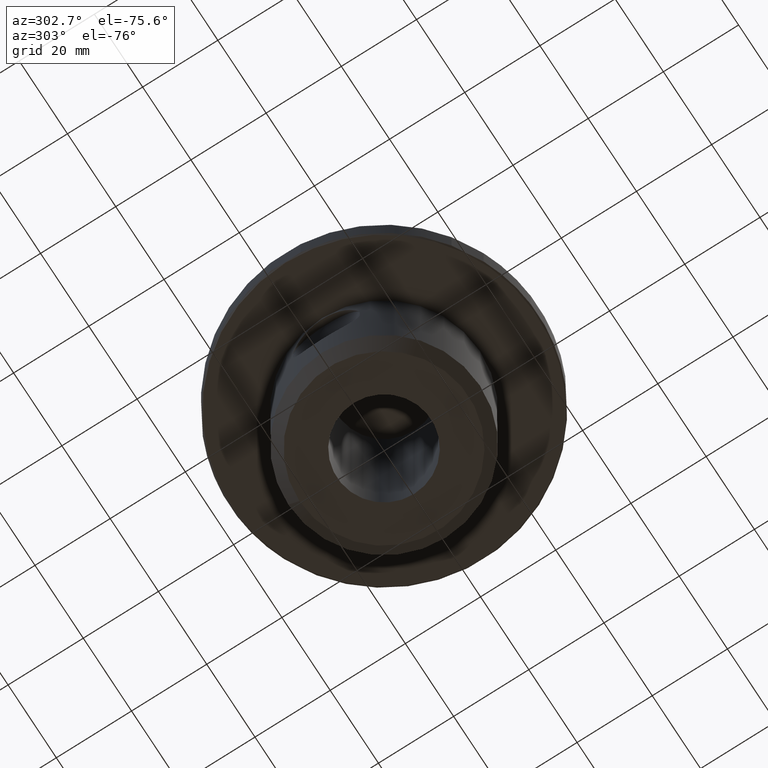
[diagram: clean part render]
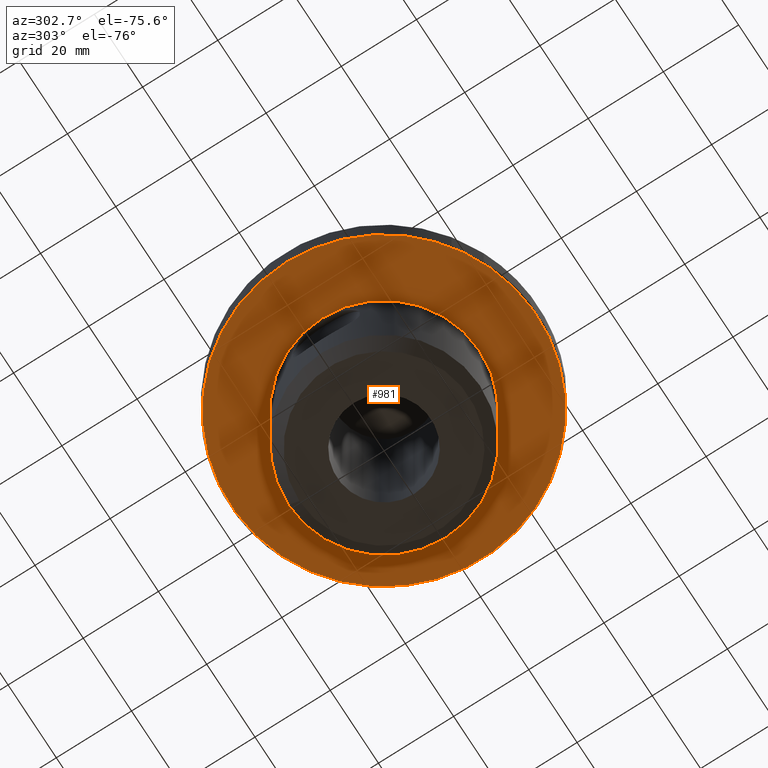
[diagram: same view with one face highlighted and labeled with its STEP entity id]
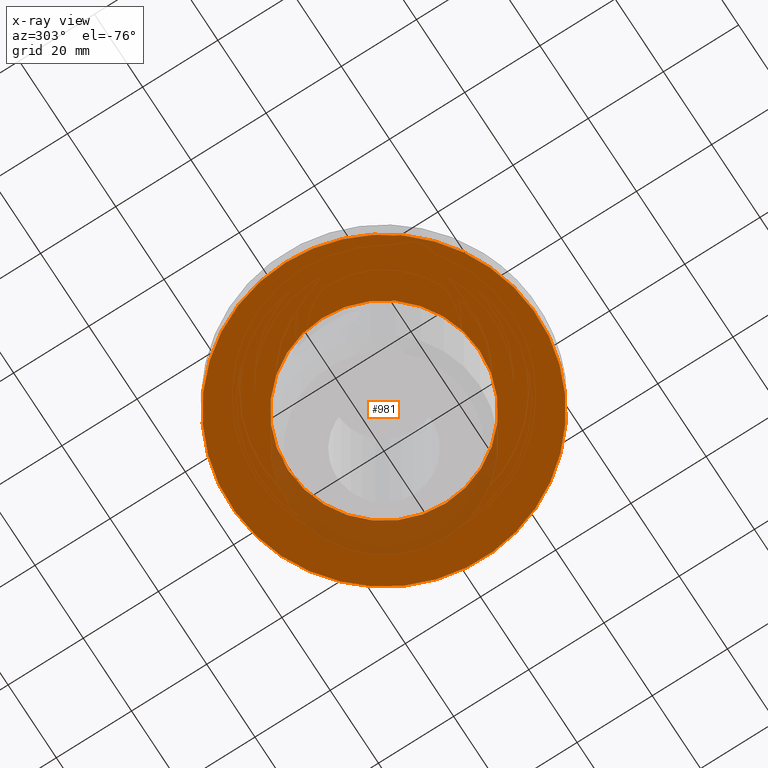
[diagram: x-ray of the same camera — body ghosted, the highlighted face saturated]
A machine part, auxiliary view. The second image highlights one B-rep face of the part: STEP entity #981.
The next image is the same camera in x-ray: the body ghosted, the highlighted face saturated — about 13% of this face is hidden behind the body in this view.
In plain terms, the highlighted planar face has unit normal (0, -0, -1).
Its self-contained STEP definition (entity closure, byte-faithful):
#32=PLANE('',#1110);
#59=CIRCLE('',#1007,25.5);
#88=CIRCLE('',#1067,40.7);
#410=ORIENTED_EDGE('',*,*,#440,.F.);
#411=ORIENTED_EDGE('',*,*,#505,.T.);
#440=EDGE_CURVE('',#571,#571,#59,.T.);
#505=EDGE_CURVE('',#620,#620,#88,.T.);
#571=VERTEX_POINT('',#1437);
#620=VERTEX_POINT('',#1647);
#786=EDGE_LOOP('',(#410));
#787=EDGE_LOOP('',(#411));
#881=FACE_BOUND('',#786,.T.);
#882=FACE_BOUND('',#787,.T.);
#981=ADVANCED_FACE('',(#881,#882),#32,.T.);
#1007=AXIS2_PLACEMENT_3D('',#1436,#1136,#1137);
#1067=AXIS2_PLACEMENT_3D('',#1646,#1272,#1273);
#1110=AXIS2_PLACEMENT_3D('',#1860,#1370,#1371);
#1136=DIRECTION('',(1.22461692971323E-16,-7.49836836562635E-33,-1.));
#1137=DIRECTION('',(-1.,0.,-1.22461692971323E-16));
#1272=DIRECTION('',(-5.20001084984554E-33,-4.76419527885826E-18,-1.));
#1273=DIRECTION('',(-1.,0.,3.42113882891801E-49));
#1370=DIRECTION('',(1.22461692971323E-16,-7.49836836562635E-33,-1.));
#1371=DIRECTION('',(-1.,6.12303176911189E-17,-1.22461692971323E-16));
#1436=CARTESIAN_POINT('',(0.,0.,-8.99999999999999));
#1437=CARTESIAN_POINT('',(-25.5,0.,-9.));
#1646=CARTESIAN_POINT('',(7.88665112559661E-15,-8.38498369079058E-17,-9.00000000000001));
#1647=CARTESIAN_POINT('',(-40.7,-8.38498369079058E-17,-9.00000000000001));
#1860=CARTESIAN_POINT('',(-30.5,1.86752468957913E-15,-9.));